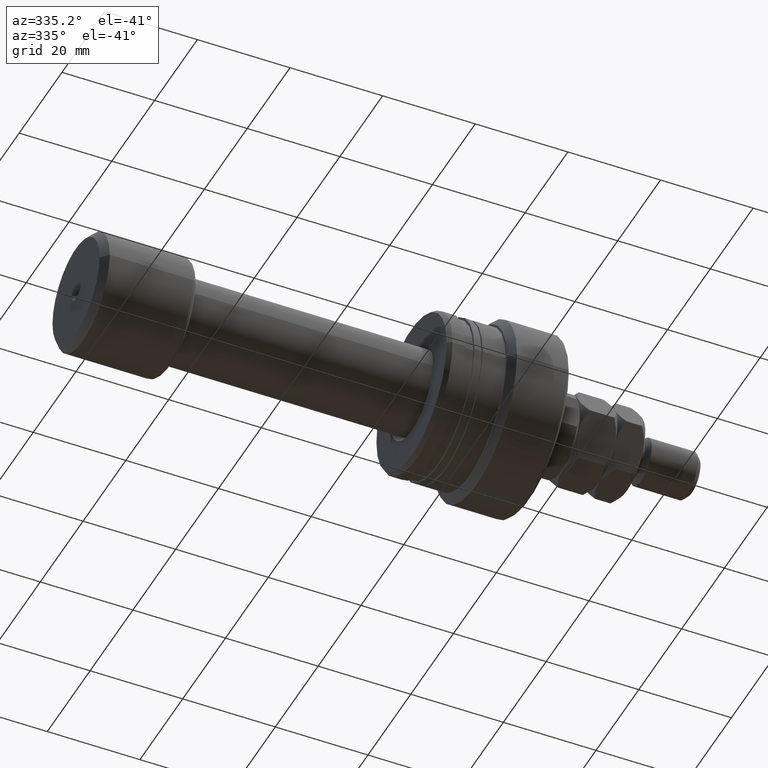
[diagram: clean part render]
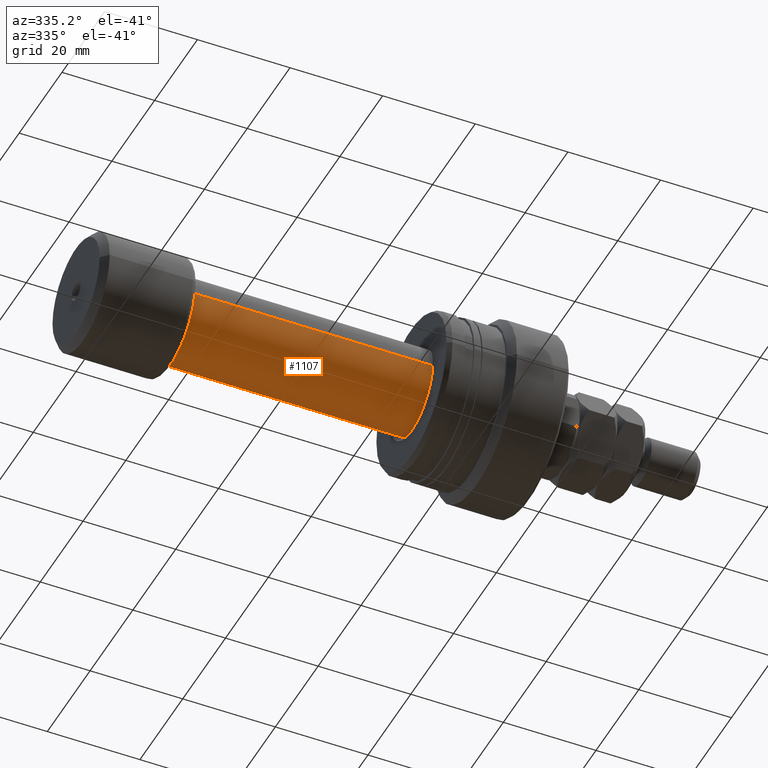
[diagram: same view with one face highlighted and labeled with its STEP entity id]
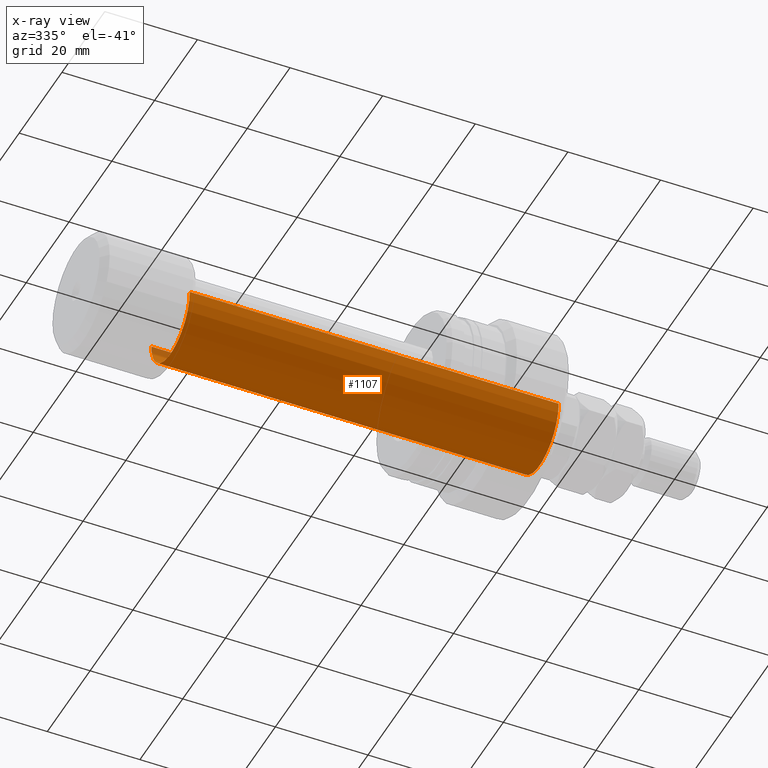
[diagram: x-ray of the same camera — body ghosted, the highlighted face saturated]
A machine part, auxiliary view. The second image highlights one B-rep face of the part: STEP entity #1107.
The next image is the same camera in x-ray: the body ghosted, the highlighted face saturated — about 1% of this face is hidden behind the body in this view.
In plain terms, the highlighted cylindrical surface (partial cylindrical patch) has radius 9 mm, axis along (-1, -0, -0).
Its self-contained STEP definition (entity closure, byte-faithful):
#46 = EDGE_CURVE ( 'NONE', #1993, #1913, #3401, .T. ) ;
#64 = CARTESIAN_POINT ( 'NONE',  ( 20.39999999999999503, -9.000000000000000000, 0.000000000000000000 ) ) ;
#98 = FACE_OUTER_BOUND ( 'NONE', #3677, .T. ) ;
#148 = ORIENTED_EDGE ( 'NONE', *, *, #46, .F. ) ;
#460 = CYLINDRICAL_SURFACE ( 'NONE', #2729, 9.000000000000095923 ) ;
#515 = DIRECTION ( 'NONE',  ( -1.000000000000000000, -1.069542322069065801E-17, -0.000000000000000000 ) ) ;
#620 = CARTESIAN_POINT ( 'NONE',  ( -9.625880898621695591E-17, 9.000000000000095923, 1.102182119232629744E-15 ) ) ;
#677 = DIRECTION ( 'NONE',  ( 0.000000000000000000, -1.000000000000000000, 0.000000000000000000 ) ) ;
#683 = CARTESIAN_POINT ( 'NONE',  ( 20.39999999999999503, 9.000000000000000000, 1.102182119232623630E-15 ) ) ;
#709 = CARTESIAN_POINT ( 'NONE',  ( 0.000000000000000000, 0.000000000000000000, 0.000000000000000000 ) ) ;
#749 = DIRECTION ( 'NONE',  ( 0.000000000000000000, -1.000000000000000000, 0.000000000000000000 ) ) ;
#1065 = DIRECTION ( 'NONE',  ( -1.000000000000000000, -1.069542322069065801E-17, -0.000000000000000000 ) ) ;
#1081 = EDGE_CURVE ( 'NONE', #1913, #3714, #1245, .T. ) ;
#1107 = ADVANCED_FACE ( 'NONE', ( #98 ), #460, .T. ) ;
#1245 = CIRCLE ( 'NONE', #3070, 9.000000000000000000 ) ;
#1478 = LINE ( 'NONE', #2045, #1706 ) ;
#1526 = ORIENTED_EDGE ( 'NONE', *, *, #1081, .F. ) ;
#1706 = VECTOR ( 'NONE', #515, 1000.000000000000000 ) ;
#1913 = VERTEX_POINT ( 'NONE', #683 ) ;
#1914 = CARTESIAN_POINT ( 'NONE',  ( 20.39999999999999503, 2.181866337020893623E-16, 0.000000000000000000 ) ) ;
#1993 = VERTEX_POINT ( 'NONE', #2695 ) ;
#2045 = CARTESIAN_POINT ( 'NONE',  ( 9.625880898621695591E-17, -9.000000000000095923, 0.000000000000000000 ) ) ;
#2125 = CARTESIAN_POINT ( 'NONE',  ( 100.0667575123237754, 1.070256321916529121E-15, 0.000000000000000000 ) ) ;
#2193 = ORIENTED_EDGE ( 'NONE', *, *, #3514, .T. ) ;
#2203 = DIRECTION ( 'NONE',  ( -1.000000000000000000, -1.069542322069065801E-17, -0.000000000000000000 ) ) ;
#2315 = ORIENTED_EDGE ( 'NONE', *, *, #3644, .T. ) ;
#2426 = CIRCLE ( 'NONE', #2684, 9.000000000000193623 ) ;
#2553 = CARTESIAN_POINT ( 'NONE',  ( 100.0667575123237754, -9.000000000000191847, 0.000000000000000000 ) ) ;
#2598 = DIRECTION ( 'NONE',  ( -1.000000000000000000, -1.069542322069065801E-17, -0.000000000000000000 ) ) ;
#2684 = AXIS2_PLACEMENT_3D ( 'NONE', #2125, #2203, #677 ) ;
#2695 = CARTESIAN_POINT ( 'NONE',  ( 100.0667575123237754, 9.000000000000195399, 1.102182119232641577E-15 ) ) ;
#2729 = AXIS2_PLACEMENT_3D ( 'NONE', #709, #1065, #3813 ) ;
#3062 = VECTOR ( 'NONE', #3137, 1000.000000000000000 ) ;
#3070 = AXIS2_PLACEMENT_3D ( 'NONE', #1914, #2598, #749 ) ;
#3137 = DIRECTION ( 'NONE',  ( -1.000000000000000000, -1.069542322069065801E-17, -0.000000000000000000 ) ) ;
#3401 = LINE ( 'NONE', #620, #3062 ) ;
#3514 = EDGE_CURVE ( 'NONE', #3766, #3714, #1478, .T. ) ;
#3644 = EDGE_CURVE ( 'NONE', #1993, #3766, #2426, .T. ) ;
#3677 = EDGE_LOOP ( 'NONE', ( #148, #2315, #2193, #1526 ) ) ;
#3714 = VERTEX_POINT ( 'NONE', #64 ) ;
#3766 = VERTEX_POINT ( 'NONE', #2553 ) ;
#3813 = DIRECTION ( 'NONE',  ( 1.069542322069065955E-17, -1.000000000000000000, 0.000000000000000000 ) ) ;